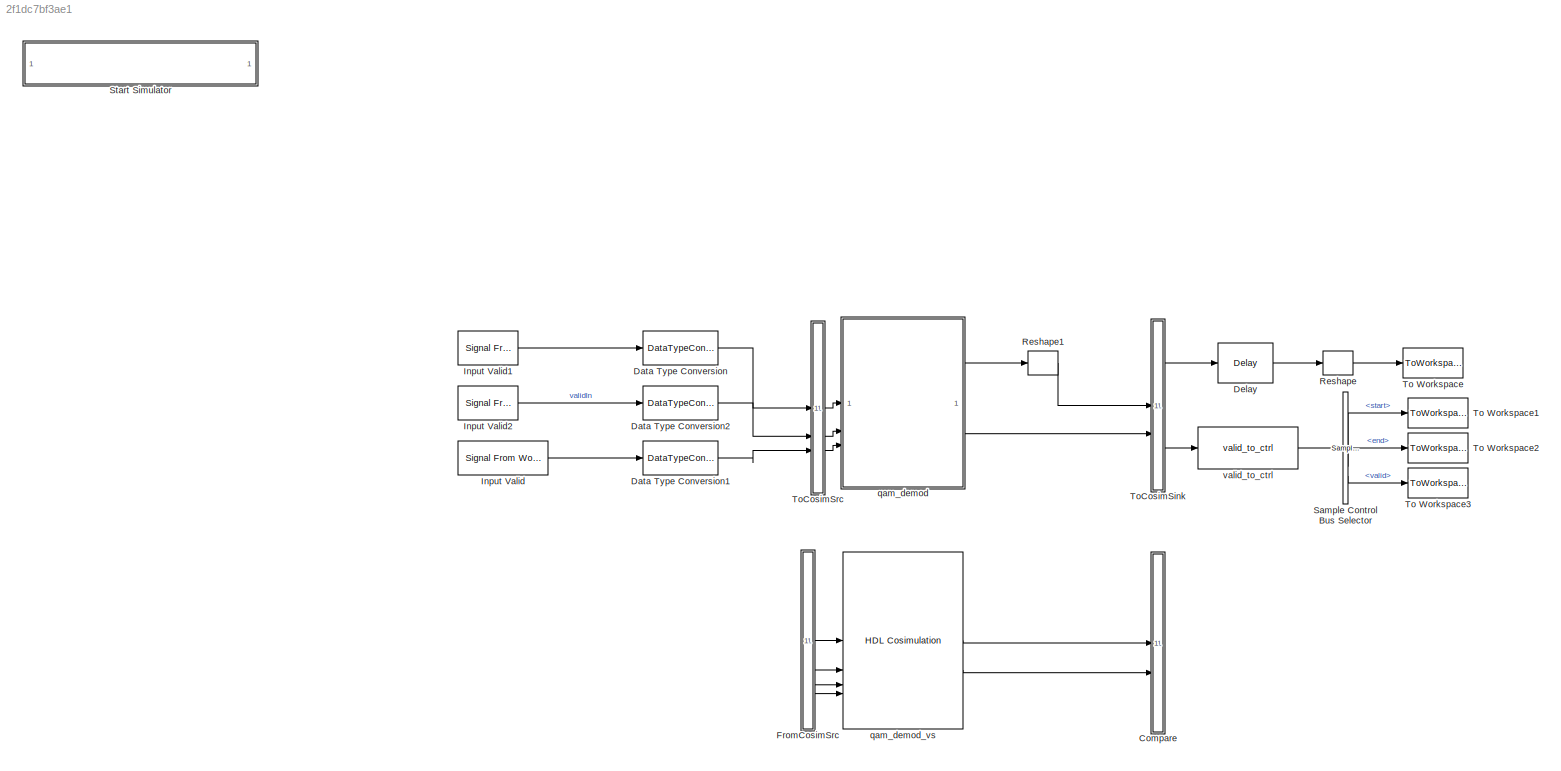
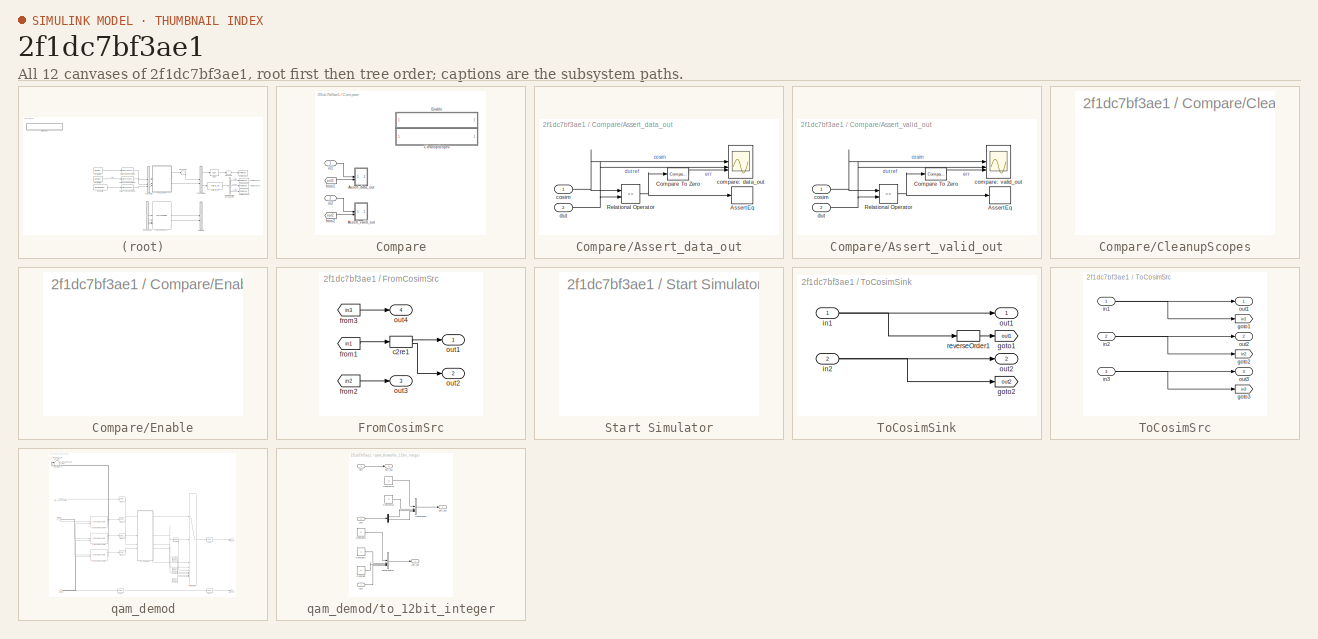
[diagram: thumbnail index - all 12 canvases of the model, root first then tree order]
MODEL slx_2f1dc7bf3ae1
KIND model
CONFIG AbsTol = auto
CONFIG EnableMultiTasking = off
CONFIG FixedStep = auto
CONFIG MaxStep = auto
CONFIG MinStep = auto
CONFIG RelTol = 1e-3
CONFIG SampleTimeConstraint = Unconstrained
CONFIG SolverName = VariableStepAuto
CONFIG StartTime = 0.0
CONFIG StopTime = 10.0
BLOCK [SubSystem] Compare
BLOCK [SubSystem] Compare/Assert_data_out
  LibrarySourceBlock = hdlmdlgenlib/AssertEq
BLOCK [Assertion] Compare/Assert_data_out/AssertEq
BLOCK [Reference] Compare/Assert_data_out/Compare To Zero  REF=simulink/Logic and Bit
Operations/Compare
To Zero
  SourceBlock = simulink/Logic and Bit\nOperations/Compare\nTo Zero
  SourceType = Compare To Zero
BLOCK [RelationalOperator] Compare/Assert_data_out/Relational Operator
  InputSameDT = off
  Operator = ==
  OutDataTypeStr = boolean
BLOCK [Scope] Compare/Assert_data_out/compare: data_out
  Floating = off
  NumInputPorts = 3
  ScopeSpecificationString = Simulink.scopes.TimeScopeBlockCfg('CurrentConfiguration', extmgr.ConfigurationSet(extmgr.Configuration('Core','General UI',true,'MessageLogAutoOpenMode','for warn/fail messages','ShowCloseAll',true,'ShowBringAllForward',true),extmgr.Configuration('Core','Source UI',true,'PlaybackToolbar',true),extmgr.Configuration('Sources','WiredSimulink',true,'PointsPerSignal',50000,'DataLoggingDecimation','1','...<+3673ch>
BLOCK [Inport] Compare/Assert_data_out/cosim
BLOCK [Inport] Compare/Assert_data_out/dut
  Port = 2
BLOCK [SubSystem] Compare/Assert_valid_out
  LibrarySourceBlock = hdlmdlgenlib/AssertEq
BLOCK [Assertion] Compare/Assert_valid_out/AssertEq
BLOCK [Reference] Compare/Assert_valid_out/Compare To Zero  REF=simulink/Logic and Bit
Operations/Compare
To Zero
  SourceBlock = simulink/Logic and Bit\nOperations/Compare\nTo Zero
  SourceType = Compare To Zero
BLOCK [RelationalOperator] Compare/Assert_valid_out/Relational Operator
  InputSameDT = off
  Operator = ==
  OutDataTypeStr = boolean
BLOCK [Scope] Compare/Assert_valid_out/compare: valid_out
  Floating = off
  NumInputPorts = 3
  ScopeSpecificationString = Simulink.scopes.TimeScopeBlockCfg('CurrentConfiguration', extmgr.ConfigurationSet(extmgr.Configuration('Core','General UI',true,'MessageLogAutoOpenMode','for warn/fail messages','ShowCloseAll',true,'ShowBringAllForward',true),extmgr.Configuration('Core','Source UI',true,'PlaybackToolbar',true),extmgr.Configuration('Sources','WiredSimulink',true,'PointsPerSignal',50000,'DataLoggingDecimation','1','...<+3577ch>
BLOCK [Inport] Compare/Assert_valid_out/cosim
BLOCK [Inport] Compare/Assert_valid_out/dut
  Port = 2
BLOCK [SubSystem] Compare/CleanupScopes
  OpenFcn = blkName = gcb; %self block\nidx = regexp(blkName, '/CleanupScopes$', 'once');\nblkParent = blkName(1:idx-1);\nblks=find_system(blkParent, 'LookUnderMasks', 'all','blocktype', 'Scope');\nfor itr = 1:length(blks)\n	 hScopeCfg = get_param(blks{itr},'ScopeConfiguration');\n	 hScopeCfg.Visible = ~ hScopeCfg.Visible;\nend\ndrawnow;
BLOCK [SubSystem] Compare/Enable
  OpenFcn = blkName = gcb;\nidx = regexp(blkName, '/Enable$', 'once');\nblkParent = blkName(1:idx-1);\nblks=find_system(blkParent, 'LookUnderMasks', 'all','blocktype', 'Assertion');\ne = get_param(blks{1}, 'Enabled');\nif strcmp(e, 'on'), f= 'off';, else, f = 'on';, end\nfor ii=1:length(blks), set_param(blks{ii}, 'Enabled', f);, end\nset_param(gcb, 'MaskDisplay',['fprintf(message(''hdlcoder:cosim:vnl_dblclick_assert...<+47ch>
BLOCK [From] Compare/from1
  GotoTag = out1
  TagVisibility = global
BLOCK [From] Compare/from2
  GotoTag = out2
  TagVisibility = global
BLOCK [Inport] Compare/in1
BLOCK [Inport] Compare/in2
  Port = 2
BLOCK [DataTypeConversion] Data Type Conversion
  OutDataTypeStr = fixdt(1,16,12)
  RndMeth = Floor
  SaturateOnIntegerOverflow = off
BLOCK [DataTypeConversion] Data Type Conversion1
  OutDataTypeStr = fixdt(0,4,0)
  RndMeth = Floor
  SaturateOnIntegerOverflow = off
BLOCK [DataTypeConversion] Data Type Conversion2
  OutDataTypeStr = boolean
  RndMeth = Floor
  SaturateOnIntegerOverflow = off
BLOCK [Delay] Delay
  DelayLength = 1
  InitialCondition = 0
  InputPortMap = u0
  UseCircularBuffer = on
  UserDataPersistent = on
BLOCK [SubSystem] FromCosimSrc
BLOCK [ComplexToRealImag] FromCosimSrc/c2re1
BLOCK [From] FromCosimSrc/from1
  GotoTag = in1
  TagVisibility = global
BLOCK [From] FromCosimSrc/from2
  GotoTag = in2
  TagVisibility = global
BLOCK [From] FromCosimSrc/from3
  GotoTag = in3
  TagVisibility = global
BLOCK [Outport] FromCosimSrc/out1
BLOCK [Outport] FromCosimSrc/out2
  Port = 2
BLOCK [Outport] FromCosimSrc/out3
  Port = 3
BLOCK [Outport] FromCosimSrc/out4
  Port = 4
BLOCK [Reference] Input Valid  REF=dspsrcs4/Signal From
Workspace
  SourceBlock = dspsrcs4/Signal From\nWorkspace
  SourceType = Signal From Workspace
BLOCK [Reference] Input Valid1  REF=dspsrcs4/Signal From
Workspace
  SourceBlock = dspsrcs4/Signal From\nWorkspace
  SourceType = Signal From Workspace
BLOCK [Reference] Input Valid2  REF=dspsrcs4/Signal From
Workspace
  SourceBlock = dspsrcs4/Signal From\nWorkspace
  SourceType = Signal From Workspace
BLOCK [Reshape] Reshape
BLOCK [Reshape] Reshape1
BLOCK [Reference] Sample Control Bus Selector  REF=whdlutilities/Sample Control
Bus Selector
  SourceBlock = whdlutilities/Sample Control\nBus Selector
BLOCK [SubSystem] Start Simulator
  OpenFcn = cosimDirName = pwd;\ncd 'hdl_prj/hdlsrc/HDLQAMDemod';\n[s,r] = system('vivado -mode batch -source gm_HDLQAMDemod_vs.tcl','-echo');\ncd (cosimDirName);\nclear cosimDirName;\nif s\n   error('Failed to create Vivado HDL design DLL using script gm_HDLQAMDemod_vs.tcl.');\nend
BLOCK [ToWorkspace] To Workspace
  MaxDataPoints = inf
  SampleTime = 1/fs
  Save2DSignal = 2-D array (concatenate along first dimension)
  VariableName = dataOut
BLOCK [ToWorkspace] To Workspace1
  MaxDataPoints = inf
  SampleTime = 1/fs
  Save2DSignal = 2-D array (concatenate along first dimension)
  VariableName = startOut
BLOCK [ToWorkspace] To Workspace2
  MaxDataPoints = inf
  SampleTime = 1/fs
  Save2DSignal = 2-D array (concatenate along first dimension)
  VariableName = endOut
BLOCK [ToWorkspace] To Workspace3
  MaxDataPoints = inf
  SampleTime = 1/fs
  Save2DSignal = 2-D array (concatenate along first dimension)
  VariableName = validOut
BLOCK [SubSystem] ToCosimSink
BLOCK [Goto] ToCosimSink/goto1
  GotoTag = out1
  TagVisibility = global
BLOCK [Goto] ToCosimSink/goto2
  GotoTag = out2
  TagVisibility = global
BLOCK [Inport] ToCosimSink/in1
BLOCK [Inport] ToCosimSink/in2
  Port = 2
BLOCK [Outport] ToCosimSink/out1
BLOCK [Outport] ToCosimSink/out2
  Port = 2
BLOCK [Selector] ToCosimSink/reverseOrder1
  IndexOptions = Index vector (dialog)
  Indices = [4:-1:1]
  OutputSizes = 1
BLOCK [SubSystem] ToCosimSrc
BLOCK [Goto] ToCosimSrc/goto1
  GotoTag = in1
  TagVisibility = global
BLOCK [Goto] ToCosimSrc/goto2
  GotoTag = in2
  TagVisibility = global
BLOCK [Goto] ToCosimSrc/goto3
  GotoTag = in3
  TagVisibility = global
BLOCK [Inport] ToCosimSrc/in1
BLOCK [Inport] ToCosimSrc/in2
  Port = 2
BLOCK [Inport] ToCosimSrc/in3
  Port = 3
BLOCK [Outport] ToCosimSrc/out1
BLOCK [Outport] ToCosimSrc/out2
  Port = 2
BLOCK [Outport] ToCosimSrc/out3
  Port = 3
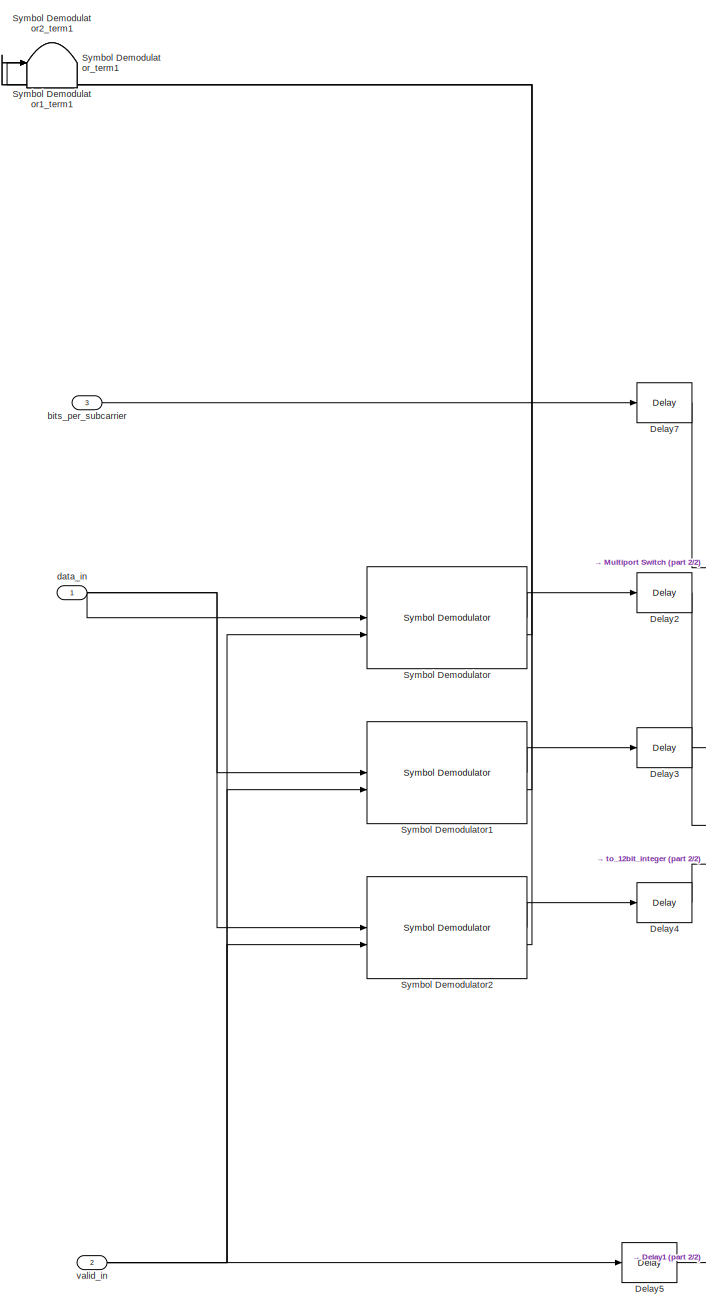
[diagram: qam_demod - part 1/2, left side, full height]
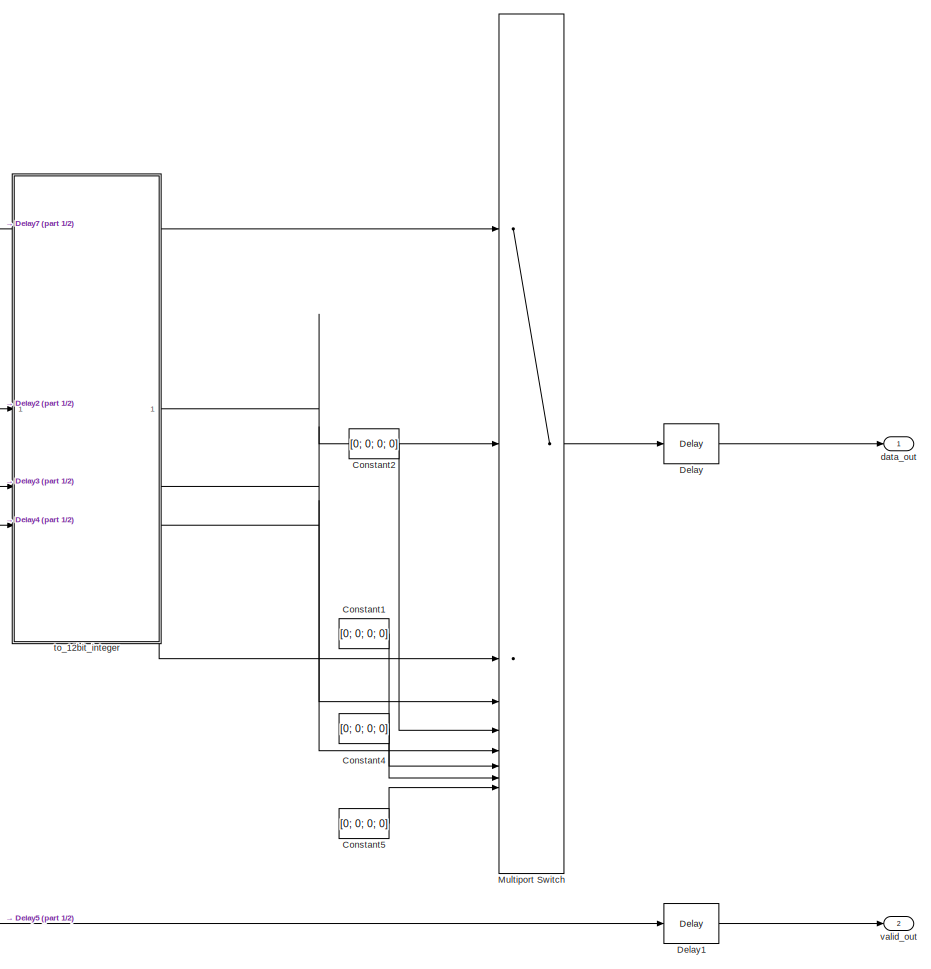
[diagram: qam_demod - part 2/2, middle right region]
BLOCK [SubSystem] qam_demod
BLOCK [Constant] qam_demod/Constant1
  LockScale = on
  OutDataTypeStr = fixdt(1, 20, 12)
  SampleTime = -1
  Value = [0; 0; 0; 0]
  VectorParams1D = off
BLOCK [Constant] qam_demod/Constant2
  LockScale = on
  OutDataTypeStr = fixdt(1, 20, 12)
  SampleTime = -1
  Value = [0; 0; 0; 0]
  VectorParams1D = off
BLOCK [Constant] qam_demod/Constant4
  LockScale = on
  OutDataTypeStr = fixdt(1, 20, 12)
  SampleTime = -1
  Value = [0; 0; 0; 0]
  VectorParams1D = off
BLOCK [Constant] qam_demod/Constant5
  LockScale = on
  OutDataTypeStr = fixdt(1, 20, 12)
  SampleTime = -1
  Value = [0; 0; 0; 0]
  VectorParams1D = off
BLOCK [Delay] qam_demod/Delay
  DelayLength = 1
  InitialCondition = 0
  InputPortMap = u0
  UseCircularBuffer = on
  UserDataPersistent = on
BLOCK [Delay] qam_demod/Delay1
  DelayLength = 1
  InitialCondition = 0
  InputPortMap = u0
  UseCircularBuffer = on
  UserDataPersistent = on
BLOCK [Delay] qam_demod/Delay2
  DelayLength = 0
  InitialCondition = 0
  InputPortMap = u0
  UseCircularBuffer = on
  UserDataPersistent = on
BLOCK [Delay] qam_demod/Delay3
  DelayLength = 1
  InitialCondition = 0
  InputPortMap = u0
  UseCircularBuffer = on
  UserDataPersistent = on
BLOCK [Delay] qam_demod/Delay4
  DelayLength = 0
  InitialCondition = 0
  InputPortMap = u0
  UseCircularBuffer = on
  UserDataPersistent = on
BLOCK [Delay] qam_demod/Delay5
  DelayLength = 6
  InitialCondition = 0
  InputPortMap = u0
  UseCircularBuffer = on
  UserDataPersistent = on
BLOCK [Delay] qam_demod/Delay7
  DelayLength = 6
  InitialCondition = 0
  InputPortMap = u0
  UseCircularBuffer = on
  UserDataPersistent = on
BLOCK [MultiPortSwitch] qam_demod/Multiport Switch
  DataPortOrder = Zero-based contiguous
  Inputs = 8
  OutDataTypeStr = fixdt(1, 20, 12)
  SaturateOnIntegerOverflow = off
  zeroidx = on
BLOCK [Reference] qam_demod/Symbol Demodulator  REF=whdlmod/Symbol Demodulator
  SourceBlock = whdlmod/Symbol Demodulator
  SourceType = Symbol Demodulator
BLOCK [Reference] qam_demod/Symbol Demodulator1  REF=whdlmod/Symbol Demodulator
  SourceBlock = whdlmod/Symbol Demodulator
  SourceType = Symbol Demodulator
BLOCK [Terminator] qam_demod/Symbol Demodulator1_term1
BLOCK [Reference] qam_demod/Symbol Demodulator2  REF=whdlmod/Symbol Demodulator
  SourceBlock = whdlmod/Symbol Demodulator
  SourceType = Symbol Demodulator
BLOCK [Terminator] qam_demod/Symbol Demodulator2_term1
BLOCK [Terminator] qam_demod/Symbol Demodulator_term1
BLOCK [Inport] qam_demod/bits_per_subcarrier
  OutDataTypeStr = fixdt(0, 4, 0)
  Port = 3
  PortDimensions = 1
  SampleTime = 1e-08
BLOCK [Inport] qam_demod/data_in
  OutDataTypeStr = fixdt(1, 16, 12)
  PortDimensions = 1
  SampleTime = 1e-08
  SignalType = complex
BLOCK [Outport] qam_demod/data_out
  SampleTime = 1e-08
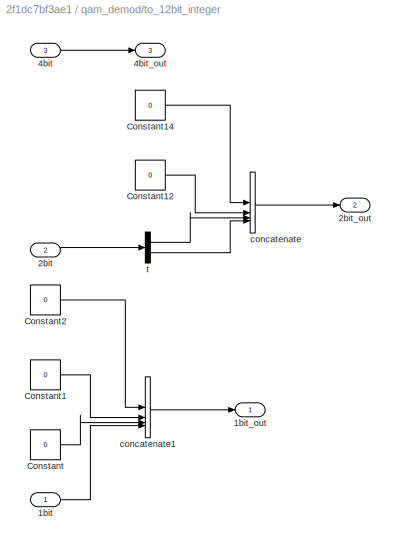
BLOCK [SubSystem] qam_demod/to_12bit_integer
BLOCK [Inport] qam_demod/to_12bit_integer/1bit
  OutDataTypeStr = fixdt(1, 20, 12)
  PortDimensions = 1
  SampleTime = 1e-08
BLOCK [Outport] qam_demod/to_12bit_integer/1bit_out
  SampleTime = 1e-08
BLOCK [Inport] qam_demod/to_12bit_integer/2bit
  OutDataTypeStr = fixdt(1, 20, 12)
  Port = 2
  PortDimensions = [2 1]
  SampleTime = 1e-08
BLOCK [Outport] qam_demod/to_12bit_integer/2bit_out
  Port = 2
  SampleTime = 1e-08
BLOCK [Inport] qam_demod/to_12bit_integer/4bit
  OutDataTypeStr = fixdt(1, 20, 12)
  Port = 3
  PortDimensions = [4 1]
  SampleTime = 1e-08
BLOCK [Outport] qam_demod/to_12bit_integer/4bit_out
  Port = 3
  SampleTime = 1e-08
BLOCK [Constant] qam_demod/to_12bit_integer/Constant
  OutDataTypeStr = fixdt(1, 20, 12)
  SampleTime = 1e-08
  Value = 0
BLOCK [Constant] qam_demod/to_12bit_integer/Constant1
  OutDataTypeStr = fixdt(1, 20, 12)
  SampleTime = 1e-08
  Value = 0
BLOCK [Constant] qam_demod/to_12bit_integer/Constant12
  OutDataTypeStr = fixdt(1, 20, 12)
  SampleTime = 1e-08
  Value = 0
BLOCK [Constant] qam_demod/to_12bit_integer/Constant14
  OutDataTypeStr = fixdt(1, 20, 12)
  SampleTime = 1e-08
  Value = 0
BLOCK [Constant] qam_demod/to_12bit_integer/Constant2
  OutDataTypeStr = fixdt(1, 20, 12)
  SampleTime = 1e-08
  Value = 0
BLOCK [Concatenate] qam_demod/to_12bit_integer/concatenate
  Mode = Multidimensional array
  NumInputs = 4
BLOCK [Concatenate] qam_demod/to_12bit_integer/concatenate1
  Mode = Multidimensional array
  NumInputs = 4
BLOCK [Demux] qam_demod/to_12bit_integer/t
  Outputs = 2
BLOCK [Inport] qam_demod/valid_in
  OutDataTypeStr = boolean
  Port = 2
  PortDimensions = 1
  SampleTime = 1e-08
BLOCK [Outport] qam_demod/valid_out
  Port = 2
  SampleTime = 1e-08
  VectorParamsAs1DForOutWhenUnconnected = off
BLOCK [Reference] qam_demod_vs  REF=vivadosimlib/HDL Cosimulation
  SourceBlock = vivadosimlib/HDL Cosimulation
  SourceType = Simulink and Vivado Simulator Cosimulation
  UserDataPersistent = on
BLOCK [Reference] valid_to_ctrl  REF=HDL_ieee_8021513/valid_to_ctrl
  SourceBlock = HDL_ieee_8021513/valid_to_ctrl
  SourceProductName = HDL IEEE 8021513
  SourceType = SubSystem
LINE Compare/Assert_data_out/Compare To Zero:1 -> Compare/Assert_data_out/compare: data_out:3
NET Compare/Assert_data_out/Relational Operator:1 -> Compare/Assert_data_out/AssertEq:1, Compare/Assert_data_out/Compare To Zero:1
NET Compare/Assert_data_out/cosim:1 -> Compare/Assert_data_out/Relational Operator:1, Compare/Assert_data_out/compare: data_out:1
NET Compare/Assert_data_out/dut:1 -> Compare/Assert_data_out/Relational Operator:2, Compare/Assert_data_out/compare: data_out:2
LINE Compare/Assert_valid_out/Compare To Zero:1 -> Compare/Assert_valid_out/compare: valid_out:3
NET Compare/Assert_valid_out/Relational Operator:1 -> Compare/Assert_valid_out/AssertEq:1, Compare/Assert_valid_out/Compare To Zero:1
NET Compare/Assert_valid_out/cosim:1 -> Compare/Assert_valid_out/Relational Operator:1, Compare/Assert_valid_out/compare: valid_out:1
NET Compare/Assert_valid_out/dut:1 -> Compare/Assert_valid_out/Relational Operator:2, Compare/Assert_valid_out/compare: valid_out:2
LINE Compare/from1:1 -> Compare/Assert_data_out:2
LINE Compare/from2:1 -> Compare/Assert_valid_out:2
LINE Compare/in1:1 -> Compare/Assert_data_out:1
LINE Compare/in2:1 -> Compare/Assert_valid_out:1
LINE Data Type Conversion1:1 -> ToCosimSrc:3
LINE Data Type Conversion2:1 -> ToCosimSrc:2
LINE Data Type Conversion:1 -> ToCosimSrc:1
LINE Delay:1 -> Reshape:1
LINE FromCosimSrc/c2re1:1 -> FromCosimSrc/out1:1
LINE FromCosimSrc/c2re1:2 -> FromCosimSrc/out2:1
LINE FromCosimSrc/from1:1 -> FromCosimSrc/c2re1:1
LINE FromCosimSrc/from2:1 -> FromCosimSrc/out3:1
LINE FromCosimSrc/from3:1 -> FromCosimSrc/out4:1
LINE FromCosimSrc:1 -> qam_demod_vs:1
LINE FromCosimSrc:2 -> qam_demod_vs:2
LINE FromCosimSrc:3 -> qam_demod_vs:3
LINE FromCosimSrc:4 -> qam_demod_vs:4
LINE Input Valid1:1 -> Data Type Conversion:1
LINE Input Valid2:1 -> Data Type Conversion2:1
LINE Input Valid:1 -> Data Type Conversion1:1
LINE Reshape1:1 -> ToCosimSink:1
LINE Reshape:1 -> To Workspace:1
LINE Sample Control Bus Selector:1 -> To Workspace1:1
LINE Sample Control Bus Selector:2 -> To Workspace2:1
LINE Sample Control Bus Selector:3 -> To Workspace3:1
NET ToCosimSink/in1:1 -> ToCosimSink/out1:1, ToCosimSink/reverseOrder1:1
NET ToCosimSink/in2:1 -> ToCosimSink/goto2:1, ToCosimSink/out2:1
LINE ToCosimSink/reverseOrder1:1 -> ToCosimSink/goto1:1
LINE ToCosimSink:1 -> Delay:1
LINE ToCosimSink:2 -> valid_to_ctrl:1
NET ToCosimSrc/in1:1 -> ToCosimSrc/goto1:1, ToCosimSrc/out1:1
NET ToCosimSrc/in2:1 -> ToCosimSrc/goto2:1, ToCosimSrc/out2:1
NET ToCosimSrc/in3:1 -> ToCosimSrc/goto3:1, ToCosimSrc/out3:1
LINE ToCosimSrc:1 -> qam_demod:1
LINE ToCosimSrc:2 -> qam_demod:2
LINE ToCosimSrc:3 -> qam_demod:3
LINE qam_demod/Constant1:1 -> qam_demod/Multiport Switch:7
LINE qam_demod/Constant2:1 -> qam_demod/Multiport Switch:5
LINE qam_demod/Constant4:1 -> qam_demod/Multiport Switch:8
LINE qam_demod/Constant5:1 -> qam_demod/Multiport Switch:9
LINE qam_demod/Delay1:1 -> qam_demod/valid_out:1
LINE qam_demod/Delay2:1 -> qam_demod/to_12bit_integer:1
LINE qam_demod/Delay3:1 -> qam_demod/to_12bit_integer:2
LINE qam_demod/Delay4:1 -> qam_demod/to_12bit_integer:3
LINE qam_demod/Delay5:1 -> qam_demod/Delay1:1
LINE qam_demod/Delay7:1 -> qam_demod/Multiport Switch:1
LINE qam_demod/Delay:1 -> qam_demod/data_out:1
LINE qam_demod/Multiport Switch:1 -> qam_demod/Delay:1
LINE qam_demod/Symbol Demodulator1:1 -> qam_demod/Delay3:1
LINE qam_demod/Symbol Demodulator1:2 -> qam_demod/Symbol Demodulator1_term1:1
LINE qam_demod/Symbol Demodulator2:1 -> qam_demod/Delay4:1
LINE qam_demod/Symbol Demodulator2:2 -> qam_demod/Symbol Demodulator2_term1:1
LINE qam_demod/Symbol Demodulator:1 -> qam_demod/Delay2:1
LINE qam_demod/Symbol Demodulator:2 -> qam_demod/Symbol Demodulator_term1:1
LINE qam_demod/bits_per_subcarrier:1 -> qam_demod/Delay7:1
NET qam_demod/data_in:1 -> qam_demod/Symbol Demodulator1:1, qam_demod/Symbol Demodulator2:1, qam_demod/Symbol Demodulator:1
LINE qam_demod/to_12bit_integer/1bit:1 -> qam_demod/to_12bit_integer/concatenate1:4
LINE qam_demod/to_12bit_integer/2bit:1 -> qam_demod/to_12bit_integer/t:1
LINE qam_demod/to_12bit_integer/4bit:1 -> qam_demod/to_12bit_integer/4bit_out:1
LINE qam_demod/to_12bit_integer/Constant12:1 -> qam_demod/to_12bit_integer/concatenate:2
LINE qam_demod/to_12bit_integer/Constant14:1 -> qam_demod/to_12bit_integer/concatenate:1
LINE qam_demod/to_12bit_integer/Constant1:1 -> qam_demod/to_12bit_integer/concatenate1:2
LINE qam_demod/to_12bit_integer/Constant2:1 -> qam_demod/to_12bit_integer/concatenate1:1
LINE qam_demod/to_12bit_integer/Constant:1 -> qam_demod/to_12bit_integer/concatenate1:3
LINE qam_demod/to_12bit_integer/concatenate1:1 -> qam_demod/to_12bit_integer/1bit_out:1
LINE qam_demod/to_12bit_integer/concatenate:1 -> qam_demod/to_12bit_integer/2bit_out:1
LINE qam_demod/to_12bit_integer/t:1 -> qam_demod/to_12bit_integer/concatenate:3
LINE qam_demod/to_12bit_integer/t:2 -> qam_demod/to_12bit_integer/concatenate:4
NET qam_demod/to_12bit_integer:1 -> qam_demod/Multiport Switch:2, qam_demod/Multiport Switch:3
LINE qam_demod/to_12bit_integer:2 -> qam_demod/Multiport Switch:4
LINE qam_demod/to_12bit_integer:3 -> qam_demod/Multiport Switch:6
NET qam_demod/valid_in:1 -> qam_demod/Delay5:1, qam_demod/Symbol Demodulator1:2, qam_demod/Symbol Demodulator2:2, qam_demod/Symbol Demodulator:2
LINE qam_demod:1 -> Reshape1:1
LINE qam_demod:2 -> ToCosimSink:2
LINE qam_demod_vs:1 -> Compare:1
LINE qam_demod_vs:2 -> Compare:2
LINE valid_to_ctrl:1 -> Sample Control Bus Selector:1
note: NET lines group one-source signal fan-out (src -> all destinations, sorted); 1:1 wires keep LINE
